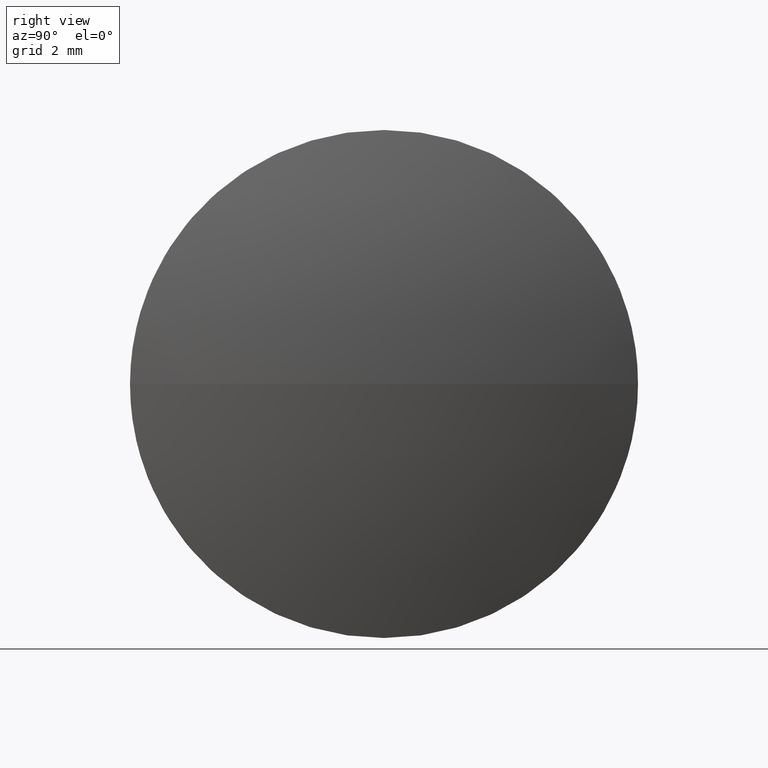
[diagram: clean part render]
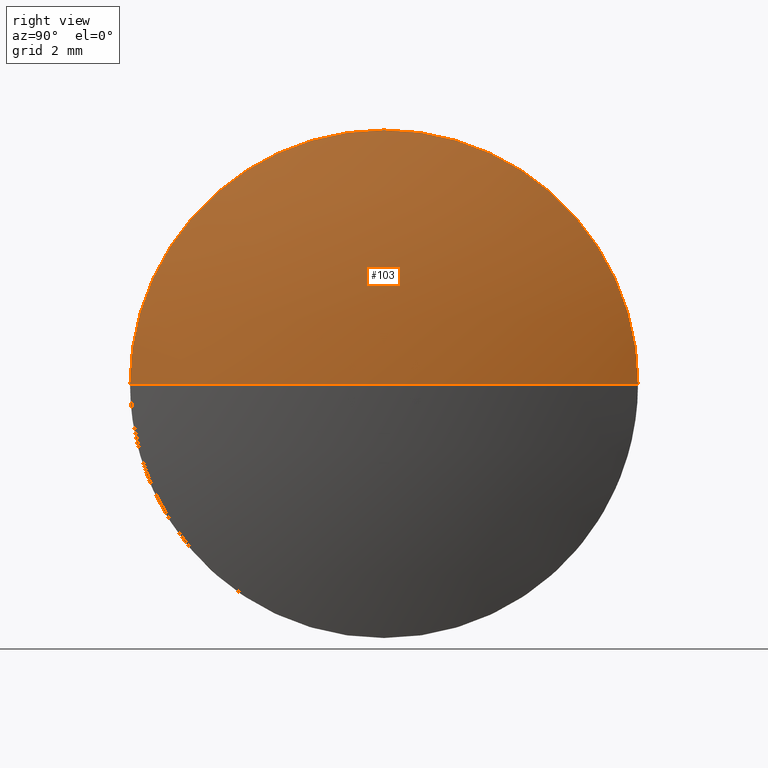
[diagram: same view with one face highlighted and labeled with its STEP entity id]
A machine part, right view. The second image highlights one B-rep face of the part: STEP entity #103.
In plain terms, the highlighted spherical surface has radius 18.2071 mm.
Its self-contained STEP definition (entity closure, byte-faithful):
#1 = VERTEX_POINT ( 'NONE', #108 ) ;
#5 = FACE_OUTER_BOUND ( 'NONE', #94, .T. ) ;
#9 = CARTESIAN_POINT ( 'NONE',  ( 434.5168142886836300, 90.12789377755979100, 0.0000000000000000000 ) ) ;
#15 = CARTESIAN_POINT ( 'NONE',  ( 434.5168142886836300, 90.12789377755979100, 0.0000000000000000000 ) ) ;
#17 = DIRECTION ( 'NONE',  ( -1.000000000000000000, -0.0000000000000000000, -0.0000000000000000000 ) ) ;
#24 = ORIENTED_EDGE ( 'NONE', *, *, #122, .T. ) ;
#28 = DIRECTION ( 'NONE',  ( -0.0000000000000000000, 0.0000000000000000000, -1.000000000000000000 ) ) ;
#30 = VERTEX_POINT ( 'NONE', #180 ) ;
#38 = AXIS2_PLACEMENT_3D ( 'NONE', #176, #28, #39 ) ;
#39 = DIRECTION ( 'NONE',  ( 0.0000000000000000000, 1.000000000000000000, 0.0000000000000000000 ) ) ;
#42 = VERTEX_POINT ( 'NONE', #177 ) ;
#44 = CIRCLE ( 'NONE', #155, 18.20714285714292300 ) ;
#49 = DIRECTION ( 'NONE',  ( 1.000000000000000000, 0.0000000000000000000, 0.0000000000000000000 ) ) ;
#50 = DIRECTION ( 'NONE',  ( 0.0000000000000000000, 0.0000000000000000000, 1.000000000000000000 ) ) ;
#51 = ORIENTED_EDGE ( 'NONE', *, *, #62, .F. ) ;
#58 = EDGE_CURVE ( 'NONE', #76, #30, #131, .T. ) ;
#62 = EDGE_CURVE ( 'NONE', #42, #76, #77, .T. ) ;
#76 = VERTEX_POINT ( 'NONE', #125 ) ;
#77 = CIRCLE ( 'NONE', #146, 18.20714285714293700 ) ;
#88 = CIRCLE ( 'NONE', #105, 5.000000000000004400 ) ;
#93 = DIRECTION ( 'NONE',  ( -1.000000000000000000, -0.0000000000000000000, -0.0000000000000000000 ) ) ;
#94 = EDGE_LOOP ( 'NONE', ( #51, #24, #116, #138 ) ) ;
#95 = SPHERICAL_SURFACE ( 'NONE', #38, 18.20714285714293700 ) ;
#97 = AXIS2_PLACEMENT_3D ( 'NONE', #9, #93, #121 ) ;
#102 = EDGE_CURVE ( 'NONE', #30, #1, #88, .T. ) ;
#103 = ADVANCED_FACE ( 'NONE', ( #5 ), #95, .T. ) ;
#105 = AXIS2_PLACEMENT_3D ( 'NONE', #15, #17, #50 ) ;
#107 = DIRECTION ( 'NONE',  ( 0.0000000000000000000, 1.224646799147353200E-016, -1.000000000000000000 ) ) ;
#108 = CARTESIAN_POINT ( 'NONE',  ( 434.5168142886836300, 95.12789377755979100, 0.0000000000000000000 ) ) ;
#116 = ORIENTED_EDGE ( 'NONE', *, *, #102, .F. ) ;
#121 = DIRECTION ( 'NONE',  ( 0.0000000000000000000, 0.0000000000000000000, 1.000000000000000000 ) ) ;
#122 = EDGE_CURVE ( 'NONE', #42, #1, #44, .T. ) ;
#125 = CARTESIAN_POINT ( 'NONE',  ( 434.5168142886836300, 85.12789377755979100, -6.123233995736751500E-016 ) ) ;
#127 = DIRECTION ( 'NONE',  ( -0.0000000000000000000, 0.0000000000000000000, 1.000000000000000000 ) ) ;
#129 = CARTESIAN_POINT ( 'NONE',  ( 417.0096714315407100, 90.12789377755977700, 0.0000000000000000000 ) ) ;
#131 = CIRCLE ( 'NONE', #97, 5.000000000000004400 ) ;
#138 = ORIENTED_EDGE ( 'NONE', *, *, #58, .F. ) ;
#146 = AXIS2_PLACEMENT_3D ( 'NONE', #167, #107, #153 ) ;
#153 = DIRECTION ( 'NONE',  ( 0.0000000000000000000, 1.000000000000000000, 1.224646799147353000E-016 ) ) ;
#155 = AXIS2_PLACEMENT_3D ( 'NONE', #129, #127, #49 ) ;
#167 = CARTESIAN_POINT ( 'NONE',  ( 417.0096714315407100, 90.12789377755977700, 0.0000000000000000000 ) ) ;
#176 = CARTESIAN_POINT ( 'NONE',  ( 417.0096714315407100, 90.12789377755977700, 0.0000000000000000000 ) ) ;
#177 = CARTESIAN_POINT ( 'NONE',  ( 435.2168142886836200, 90.12789377755977700, 0.0000000000000000000 ) ) ;
#180 = CARTESIAN_POINT ( 'NONE',  ( 434.5168142886836300, 90.12789377755979100, 5.000000000000004400 ) ) ;